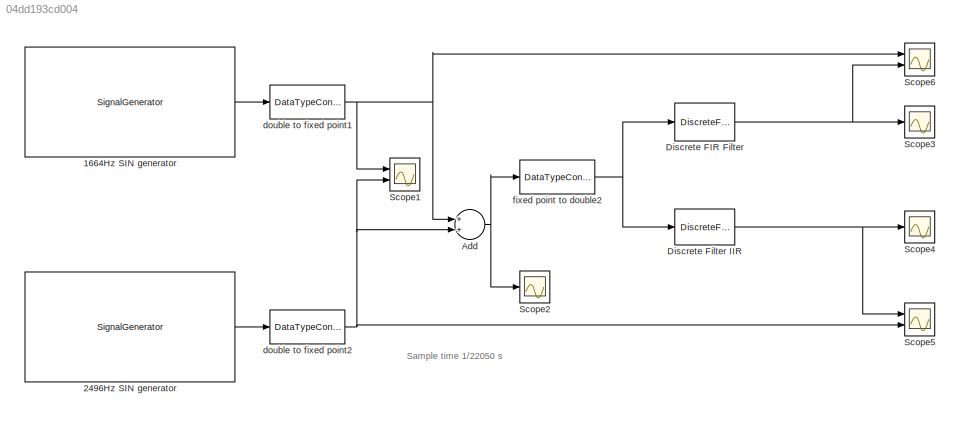
MODEL slx_04dd193cd004
KIND model
CONFIG AbsTol = auto
CONFIG EnableMultiTasking = off
CONFIG FixedStep = auto
CONFIG MaxStep = auto
CONFIG MinStep = auto
CONFIG RelTol = 1e-3
CONFIG SampleTimeConstraint = Unconstrained
CONFIG Solver = VariableStepAuto
CONFIG SolverName = VariableStepAuto
CONFIG StartTime = 0.0
CONFIG StopTime = 0.01
BLOCK [SignalGenerator] 1664Hz SIN generator
  Frequency = 1664
  Ports = [0, 1]
BLOCK [SignalGenerator] 2496Hz SIN generator
  Frequency = 2496
  Ports = [0, 1]
BLOCK [Sum] Add
  InputSameDT = off
  OutDataTypeStr = Inherit: Inherit via internal rule
  Ports = [2, 1]
  SaturateOnIntegerOverflow = off
BLOCK [DiscreteFir] Discrete FIR Filter 
  AccumDataTypeStr = fixdt(1,16,14)
  CoefDataTypeStr = fixdt(1,16,14)
  Coefficients = [-0.0073   -0.0071   -0.0059   -0.0024    0.0040    0.0133    0.0231    0.0301    0.0302    0.0207    0.0014   -0.0242   -0.0498 -0.0677   -0.0713   -0.0571   -0.0269    0.0129    0.0525    0.0814    0.0921    0.0814    0.0525    0.0129   -0.0269   -0.0571 -0.0713   -0.0677   -0.0498   -0.0242    0.0014    0.0207    0.0302    0.0301    0.0231    0.0133    0.0040   -0.0024   -0.0059 -0.0071   -0.00...<+3ch>
  InputPortMap = u0
  OutDataTypeStr = fixdt(1,16,14)
  OutputPortMap = o0
  Ports = [1, 1]
  ProductDataTypeStr = fixdt(1,16,14)
BLOCK [DiscreteFilter] Discrete Filter IIR
  DenAccumDataTypeStr = fixdt(1,16,14)
  DenCoefDataTypeStr = fixdt(1,16,14)
  DenProductDataTypeStr = fixdt(1,16,14)
  Denominator = [1.0000   -1.4749    0.9469]
  InputPortMap = u0
  InputProcessing = Columns as channels (frame based)
  NumAccumDataTypeStr = fixdt(1,16,14)
  NumCoefDataTypeStr = fixdt(1,16,14)
  NumProductDataTypeStr = fixdt(1,16,14)
  Numerator = [0.0266         0   -0.0266]
  OutDataTypeStr = fixdt(1,16,14)
  Ports = [1, 1]
  StateDataTypeStr = fixdt(1,16,14)
BLOCK [Scope] Scope1
  NumInputPorts = 2
  Ports = [2]
  ScopeSpecificationString = Simulink.scopes.TimeScopeBlockCfg('CurrentConfiguration', extmgr.ConfigurationSet(extmgr.Configuration('Core','General UI',true),extmgr.Configuration('Core','Source UI',true),extmgr.Configuration('Sources','WiredSimulink',true,'DataLoggingVariableName','ScopeData1','SampleTime','1/22050'),extmgr.Configuration('Visuals','Time Domain',true,'SerializedDisplays',{struct('MinYLimReal','-1.27057','MaxYL...<+1526ch>
BLOCK [Scope] Scope2
  NumInputPorts = 1
  Ports = [1]
  ScopeSpecificationString = Simulink.scopes.TimeScopeBlockCfg('CurrentConfiguration', extmgr.ConfigurationSet(extmgr.Configuration('Core','General UI',true),extmgr.Configuration('Core','Source UI',true),extmgr.Configuration('Sources','WiredSimulink',true,'DataLoggingVariableName','ScopeData2'),extmgr.Configuration('Visuals','Time Domain',true,'SerializedDisplays',{struct('MinYLimReal','-2.38203','MaxYLimReal','2.33022','YLab...<+1436ch>
BLOCK [Scope] Scope3
  NumInputPorts = 1
  Ports = [1]
  ScopeSpecificationString = Simulink.scopes.TimeScopeBlockCfg('CurrentConfiguration', extmgr.ConfigurationSet(extmgr.Configuration('Core','General UI',true),extmgr.Configuration('Core','Source UI',true),extmgr.Configuration('Sources','WiredSimulink',true),extmgr.Configuration('Visuals','Time Domain',true,'SerializedDisplays',{struct('MinYLimReal','-1.35033','MaxYLimReal','1.34727','YLabelReal','','MinYLimMag','0.00000','MaxY...<+1394ch>
BLOCK [Scope] Scope4
  NumInputPorts = 1
  Ports = [1]
  ScopeSpecificationString = Simulink.scopes.TimeScopeBlockCfg('CurrentConfiguration', extmgr.ConfigurationSet(extmgr.Configuration('Core','General UI',true),extmgr.Configuration('Core','Source UI',true),extmgr.Configuration('Sources','WiredSimulink',true,'DataLoggingVariableName','ScopeData3'),extmgr.Configuration('Visuals','Time Domain',true,'SerializedDisplays',{struct('MinYLimReal','-1.3507','MaxYLimReal','1.31463','YLabe...<+1447ch>
BLOCK [Scope] Scope5
  NumInputPorts = 2
  Ports = [2]
  ScopeSpecificationString = Simulink.scopes.TimeScopeBlockCfg('CurrentConfiguration', extmgr.ConfigurationSet(extmgr.Configuration('Core','General UI',true),extmgr.Configuration('Core','Source UI',true),extmgr.Configuration('Sources','WiredSimulink',true,'DataLoggingVariableName','ScopeData4','SampleTime','1/22050'),extmgr.Configuration('Visuals','Time Domain',true,'SerializedDisplays',{struct('MinYLimReal','-1.24997','MaxYL...<+1499ch>
BLOCK [Scope] Scope6
  NumInputPorts = 2
  Ports = [2]
  ScopeSpecificationString = Simulink.scopes.TimeScopeBlockCfg('CurrentConfiguration', extmgr.ConfigurationSet(extmgr.Configuration('Core','General UI',true),extmgr.Configuration('Core','Source UI',true),extmgr.Configuration('Sources','WiredSimulink',true,'DataLoggingVariableName','ScopeData5','SampleTime','1/22050'),extmgr.Configuration('Visuals','Time Domain',true,'SerializedDisplays',{struct('MinYLimReal','-1.24997','MaxYL...<+1500ch>
BLOCK [DataTypeConversion] double to fixed point1
  OutDataTypeStr = fixdt(1,16,14)
  RndMeth = Floor
  SaturateOnIntegerOverflow = off
BLOCK [DataTypeConversion] double to fixed point2
  OutDataTypeStr = fixdt(1,16,14)
  RndMeth = Floor
  SaturateOnIntegerOverflow = off
BLOCK [DataTypeConversion] fixed point to double2
  OutDataTypeStr = double
  RndMeth = Floor
  SaturateOnIntegerOverflow = off
ANNOTATION (root): Sample time 1/22050 s
LINE 1664Hz SIN generator:1 -> double to fixed point1:1
LINE 2496Hz SIN generator:1 -> double to fixed point2:1
NET Add:1 -> Scope2:1, fixed point to double2:1
NET Discrete FIR Filter :1 -> Scope3:1, Scope6:2
NET Discrete Filter IIR:1 -> Scope4:1, Scope5:1
NET double to fixed point1:1 -> Add:1, Scope1:1, Scope6:1
NET double to fixed point2:1 -> Add:2, Scope1:2, Scope5:2
NET fixed point to double2:1 -> Discrete FIR Filter :1, Discrete Filter IIR:1
note: NET lines group one-source signal fan-out (src -> all destinations, sorted); 1:1 wires keep LINE
